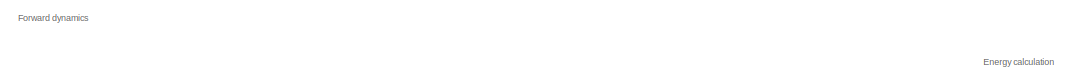
[diagram: root canvas - part 1/3, top center region]
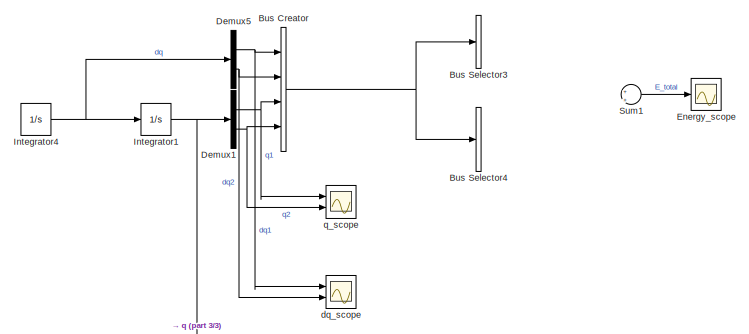
[diagram: root canvas - part 2/3, top right region]
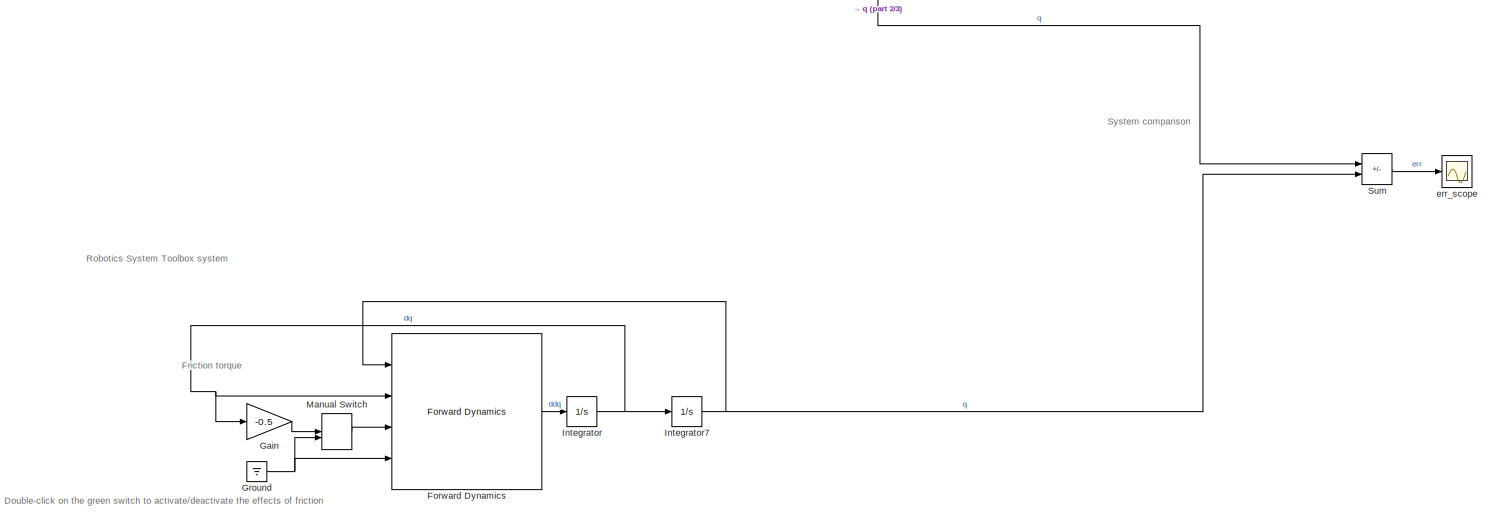
[diagram: root canvas - part 3/3, full width, bottom band]
MODEL slx_da2963355dfc
KIND model
CONFIG AbsTol = auto
CONFIG EnableMultiTasking = off
CONFIG FixedStep = 1E-3
CONFIG MaxStep = auto
CONFIG MinStep = auto
CONFIG RelTol = 1e-3
CONFIG SampleTimeConstraint = Unconstrained
CONFIG Solver = ode4
CONFIG SolverName = ode4
CONFIG StartTime = 0.0
CONFIG StopTime = 100
BLOCK [BusCreator] Bus Creator
  DisplayOption = bar
  InheritFromInputs = on
  Inputs = 4
  Ports = [4, 1]
BLOCK [BusSelector] Bus Selector3
  OutputSignals = q1,q2
  Ports = [1, 2]
BLOCK [BusSelector] Bus Selector4
  OutputSignals = dq2,q2,dq1
  Ports = [1, 3]
BLOCK [Demux] Demux1
  Outputs = 2
  Ports = [1, 2]
BLOCK [Demux] Demux5
  Outputs = 2
  Ports = [1, 2]
BLOCK [Scope] Energy_scope
  Floating = off
  NumInputPorts = 1
  Ports = [1]
  ScopeSpecificationString = Simulink.scopes.TimeScopeBlockCfg('CurrentConfiguration', extmgr.ConfigurationSet(extmgr.Configuration('Core','General UI',true,'FigureColor',[0 0 0]),extmgr.Configuration('Core','Source UI',true),extmgr.Configuration('Sources','WiredSimulink',true,'DataLoggingVariableName','ScopeData2'),extmgr.Configuration('Visuals','Time Domain',true,'SerializedDisplays',{struct('MinYLimReal','-0.00000026','Max...<+1730ch>
BLOCK [Reference] Forward Dynamics  REF=robotmaniplib/Forward Dynamics
  Ports = [4, 1]
  SourceBlock = robotmaniplib/Forward Dynamics
  SourceProductBaseCode = RO
  SourceType = Forward Dynamics
BLOCK [Gain] Gain
  Gain = -0.5
BLOCK [Ground] Ground
BLOCK [Integrator] Integrator
  InitialCondition = zeros(2,1)
  Ports = [1, 1]
BLOCK [Integrator] Integrator1
  InitialCondition = [0 0]
  Ports = [1, 1]
  WrapState = on
BLOCK [Integrator] Integrator4
  InitialCondition = [0,0]
  Ports = [1, 1]
BLOCK [Integrator] Integrator7
  InitialCondition = zeros(2,1)
  Ports = [1, 1]
BLOCK [ManualSwitch] Manual Switch
  CurrentSetting = 0
BLOCK [Sum] Sum
  IconShape = rectangular
  Inputs = +-
  Ports = [2, 1]
BLOCK [Sum] Sum1
  Inputs = +|+
  Ports = [2, 1]
BLOCK [Scope] dq_scope
  Floating = off
  NumInputPorts = 2
  Ports = [2]
  ScopeSpecificationString = Simulink.scopes.TimeScopeBlockCfg('CurrentConfiguration', extmgr.ConfigurationSet(extmgr.Configuration('Core','General UI',true,'FigureColor',[0 0 0]),extmgr.Configuration('Core','Source UI',true),extmgr.Configuration('Sources','WiredSimulink',true,'DataLoggingVariableName','ScopeData1'),extmgr.Configuration('Visuals','Time Domain',true,'SerializedDisplays',{struct('MinYLimReal','-23.61564','MaxYL...<+1852ch>
BLOCK [Scope] err_scope
  Floating = off
  NumInputPorts = 1
  Ports = [1]
  ScopeSpecificationString = Simulink.scopes.TimeScopeBlockCfg('CurrentConfiguration', extmgr.ConfigurationSet(extmgr.Configuration('Core','General UI',true),extmgr.Configuration('Core','Source UI',true),extmgr.Configuration('Sources','WiredSimulink',true,'DataLoggingVariableName','ScopeData5'),extmgr.Configuration('Visuals','Time Domain',true,'SerializedDisplays',{struct('MinYLimReal','-0.0000000000000044','MaxYLimReal','0.0...<+1487ch>
BLOCK [Scope] q_scope
  Floating = off
  NumInputPorts = 2
  Ports = [2]
  ScopeSpecificationString = Simulink.scopes.TimeScopeBlockCfg('CurrentConfiguration', extmgr.ConfigurationSet(extmgr.Configuration('Core','General UI',true,'FigureColor',[0 0 0]),extmgr.Configuration('Core','Source UI',true),extmgr.Configuration('Sources','WiredSimulink',true),extmgr.Configuration('Visuals','Time Domain',true,'SerializedDisplays',{struct('MinYLimReal','-3.21285','MaxYLimReal','0.95939','YLabelReal','q_i(t)',...<+1804ch>
ANNOTATION (root): Double-click on the green switch to activate/deactivate the effects of friction
ANNOTATION (root): Energy calculation
ANNOTATION (root): Forward dynamics
ANNOTATION (root): Friction torque
ANNOTATION (root): Robotics System Toolbox system
ANNOTATION (root): System comparison
NET Bus Creator:1 -> Bus Selector3:1, Bus Selector4:1
NET Demux1:1 -> Bus Creator:3, q_scope:1
NET Demux1:2 -> Bus Creator:4, q_scope:2
NET Demux5:1 -> Bus Creator:1, dq_scope:1
NET Demux5:2 -> Bus Creator:2, dq_scope:2
LINE Forward Dynamics:1 -> Integrator:1
LINE Gain:1 -> Manual Switch:1
NET Ground:1 -> Forward Dynamics:4, Manual Switch:2
NET Integrator1:1 -> Demux1:1, Sum:1
NET Integrator4:1 -> Demux5:1, Integrator1:1
NET Integrator7:1 -> Forward Dynamics:1, Sum:2
NET Integrator:1 -> Forward Dynamics:2, Gain:1, Integrator7:1
LINE Manual Switch:1 -> Forward Dynamics:3
LINE Sum1:1 -> Energy_scope:1
LINE Sum:1 -> err_scope:1
note: NET lines group one-source signal fan-out (src -> all destinations, sorted); 1:1 wires keep LINE
